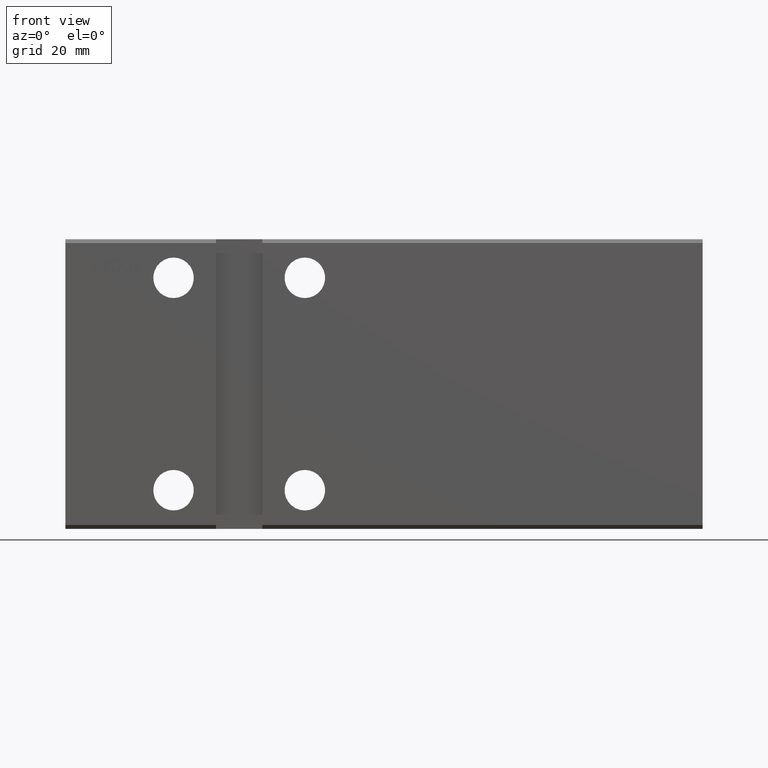
[diagram: clean part render]
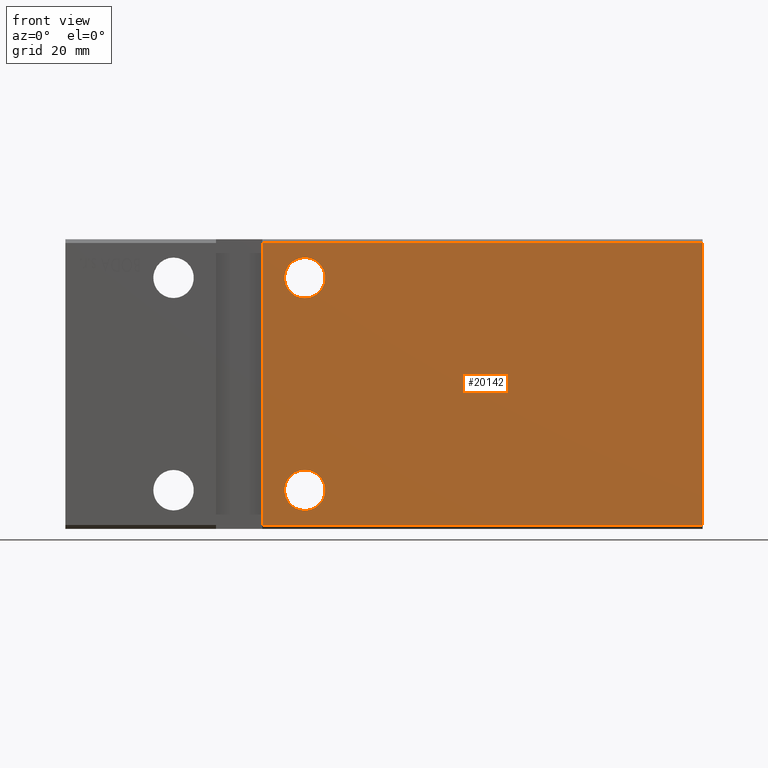
[diagram: same view with one face highlighted and labeled with its STEP entity id]
A machine part, front view. The second image highlights one B-rep face of the part: STEP entity #20142.
In plain terms, the highlighted planar face has unit normal (-0, 1, 0).
Its self-contained STEP definition (entity closure, byte-faithful):
#412 = ORIENTED_EDGE ( 'NONE', *, *, #37994, .F. ) ;
#591 = CIRCLE ( 'NONE', #36151, 5.249999999999997335 ) ;
#611 = DIRECTION ( 'NONE',  ( 0.000000000000000000, 4.752667057470705491E-17, -1.000000000000000000 ) ) ;
#1338 = CARTESIAN_POINT ( 'NONE',  ( 62.00000000000000000, -27.50000000000000355, 22.24999999999999289 ) ) ;
#1987 = EDGE_LOOP ( 'NONE', ( #37094, #36159 ) ) ;
#3083 = DIRECTION ( 'NONE',  ( -0.000000000000000000, 1.000000000000000000, 4.752667057470705491E-17 ) ) ;
#4403 = AXIS2_PLACEMENT_3D ( 'NONE', #8492, #15174, #39886 ) ;
#5363 = AXIS2_PLACEMENT_3D ( 'NONE', #8755, #3083, #27390 ) ;
#5423 = CARTESIAN_POINT ( 'NONE',  ( 165.0000000000000000, -27.50000000000000355, -36.49999999999998579 ) ) ;
#5451 = VECTOR ( 'NONE', #611, 1000.000000000000000 ) ;
#5862 = EDGE_CURVE ( 'NONE', #6920, #25266, #26889, .T. ) ;
#5877 = DIRECTION ( 'NONE',  ( -0.000000000000000000, 1.000000000000000000, 4.752667057470705491E-17 ) ) ;
#6196 = CARTESIAN_POINT ( 'NONE',  ( 165.0000000000000000, -27.50000000000000711, 36.50000000000000711 ) ) ;
#6920 = VERTEX_POINT ( 'NONE', #20784 ) ;
#7310 = DIRECTION ( 'NONE',  ( -1.000000000000000000, -0.000000000000000000, -0.000000000000000000 ) ) ;
#7969 = DIRECTION ( 'NONE',  ( 0.000000000000000000, -4.752667057470705491E-17, 1.000000000000000000 ) ) ;
#8492 = CARTESIAN_POINT ( 'NONE',  ( 62.00000000000000000, -27.50000000000000355, 27.49999999999999645 ) ) ;
#8755 = CARTESIAN_POINT ( 'NONE',  ( 62.00000000000000711, -27.50000000000000355, -27.50000000000000355 ) ) ;
#10600 = DIRECTION ( 'NONE',  ( -0.000000000000000000, 1.000000000000000000, 4.752667057470705491E-17 ) ) ;
#12123 = ORIENTED_EDGE ( 'NONE', *, *, #28729, .T. ) ;
#12287 = LINE ( 'NONE', #34178, #35455 ) ;
#13130 = CIRCLE ( 'NONE', #35773, 5.250000000000004441 ) ;
#13423 = PLANE ( 'NONE',  #38772 ) ;
#14956 = CARTESIAN_POINT ( 'NONE',  ( 62.00000000000000711, -27.50000000000000355, -22.25000000000000711 ) ) ;
#15003 = EDGE_CURVE ( 'NONE', #32606, #26499, #33518, .T. ) ;
#15019 = VECTOR ( 'NONE', #7310, 1000.000000000000000 ) ;
#15174 = DIRECTION ( 'NONE',  ( 0.000000000000000000, -1.000000000000000000, -4.752667057470705491E-17 ) ) ;
#15382 = CARTESIAN_POINT ( 'NONE',  ( 62.00000000000000711, -27.50000000000000355, -27.50000000000000355 ) ) ;
#16040 = EDGE_CURVE ( 'NONE', #25266, #38975, #12287, .T. ) ;
#16409 = CARTESIAN_POINT ( 'NONE',  ( 165.0000000000000000, -27.50000000000000711, 36.50000000000000711 ) ) ;
#16738 = CARTESIAN_POINT ( 'NONE',  ( 51.00000000000000711, -27.50000000000000000, -36.49999999999997868 ) ) ;
#17076 = FACE_OUTER_BOUND ( 'NONE', #32867, .T. ) ;
#17086 = CARTESIAN_POINT ( 'NONE',  ( 62.00000000000000711, -27.50000000000000355, -32.75000000000000000 ) ) ;
#17535 = DIRECTION ( 'NONE',  ( 0.000000000000000000, -1.000000000000000000, -4.752667057470705491E-17 ) ) ;
#17553 = ORIENTED_EDGE ( 'NONE', *, *, #16040, .F. ) ;
#18004 = VERTEX_POINT ( 'NONE', #6196 ) ;
#18158 = EDGE_CURVE ( 'NONE', #38590, #26355, #591, .T. ) ;
#18569 = DIRECTION ( 'NONE',  ( -1.850371707708594316E-16, -9.251858538542971581E-17, 1.000000000000000000 ) ) ;
#19814 = LINE ( 'NONE', #29148, #5451 ) ;
#20142 = ADVANCED_FACE ( 'NONE', ( #35718, #17076, #23349 ), #13423, .F. ) ;
#20784 = CARTESIAN_POINT ( 'NONE',  ( 165.0000000000000000, -27.50000000000000355, -36.49999999999998579 ) ) ;
#21459 = DIRECTION ( 'NONE',  ( 0.000000000000000000, 0.000000000000000000, 1.000000000000000000 ) ) ;
#22685 = LINE ( 'NONE', #16409, #15019 ) ;
#23349 = FACE_BOUND ( 'NONE', #30024, .T. ) ;
#24372 = CARTESIAN_POINT ( 'NONE',  ( 62.00000000000000000, -27.50000000000000355, 32.75000000000000000 ) ) ;
#25266 = VERTEX_POINT ( 'NONE', #16738 ) ;
#25400 = CIRCLE ( 'NONE', #5363, 5.249999999999997335 ) ;
#26355 = VERTEX_POINT ( 'NONE', #14956 ) ;
#26499 = VERTEX_POINT ( 'NONE', #1338 ) ;
#26889 = LINE ( 'NONE', #5423, #30368 ) ;
#27033 = CARTESIAN_POINT ( 'NONE',  ( 51.00000000000000000, -27.50000000000000711, 36.50000000000000711 ) ) ;
#27390 = DIRECTION ( 'NONE',  ( 0.000000000000000000, 0.000000000000000000, 1.000000000000000000 ) ) ;
#28729 = EDGE_CURVE ( 'NONE', #18004, #38975, #22685, .T. ) ;
#29148 = CARTESIAN_POINT ( 'NONE',  ( 165.0000000000000000, -27.50000000000000711, 36.50000000000000711 ) ) ;
#29190 = ORIENTED_EDGE ( 'NONE', *, *, #15003, .F. ) ;
#29364 = EDGE_CURVE ( 'NONE', #26355, #38590, #25400, .T. ) ;
#29895 = DIRECTION ( 'NONE',  ( 0.000000000000000000, 0.000000000000000000, 1.000000000000000000 ) ) ;
#29927 = DIRECTION ( 'NONE',  ( -1.000000000000000000, -0.000000000000000000, -0.000000000000000000 ) ) ;
#30024 = EDGE_LOOP ( 'NONE', ( #35276, #29190 ) ) ;
#30368 = VECTOR ( 'NONE', #29927, 1000.000000000000000 ) ;
#31568 = EDGE_CURVE ( 'NONE', #26499, #32606, #13130, .T. ) ;
#32606 = VERTEX_POINT ( 'NONE', #24372 ) ;
#32867 = EDGE_LOOP ( 'NONE', ( #12123, #17553, #33542, #412 ) ) ;
#32925 = CARTESIAN_POINT ( 'NONE',  ( 62.00000000000000000, -27.50000000000000355, 27.49999999999999645 ) ) ;
#33518 = CIRCLE ( 'NONE', #4403, 5.250000000000004441 ) ;
#33542 = ORIENTED_EDGE ( 'NONE', *, *, #5862, .F. ) ;
#34178 = CARTESIAN_POINT ( 'NONE',  ( 51.00000000000000000, -27.50000000000000711, 37.50000000000000711 ) ) ;
#35276 = ORIENTED_EDGE ( 'NONE', *, *, #31568, .F. ) ;
#35455 = VECTOR ( 'NONE', #18569, 1000.000000000000000 ) ;
#35718 = FACE_BOUND ( 'NONE', #1987, .T. ) ;
#35773 = AXIS2_PLACEMENT_3D ( 'NONE', #32925, #17535, #29895 ) ;
#36151 = AXIS2_PLACEMENT_3D ( 'NONE', #15382, #5877, #21459 ) ;
#36159 = ORIENTED_EDGE ( 'NONE', *, *, #29364, .T. ) ;
#37094 = ORIENTED_EDGE ( 'NONE', *, *, #18158, .T. ) ;
#37994 = EDGE_CURVE ( 'NONE', #18004, #6920, #19814, .T. ) ;
#38358 = CARTESIAN_POINT ( 'NONE',  ( 165.0000000000000000, -27.50000000000000711, 36.50000000000000711 ) ) ;
#38590 = VERTEX_POINT ( 'NONE', #17086 ) ;
#38772 = AXIS2_PLACEMENT_3D ( 'NONE', #38358, #10600, #7969 ) ;
#38975 = VERTEX_POINT ( 'NONE', #27033 ) ;
#39886 = DIRECTION ( 'NONE',  ( 0.000000000000000000, 0.000000000000000000, 1.000000000000000000 ) ) ;